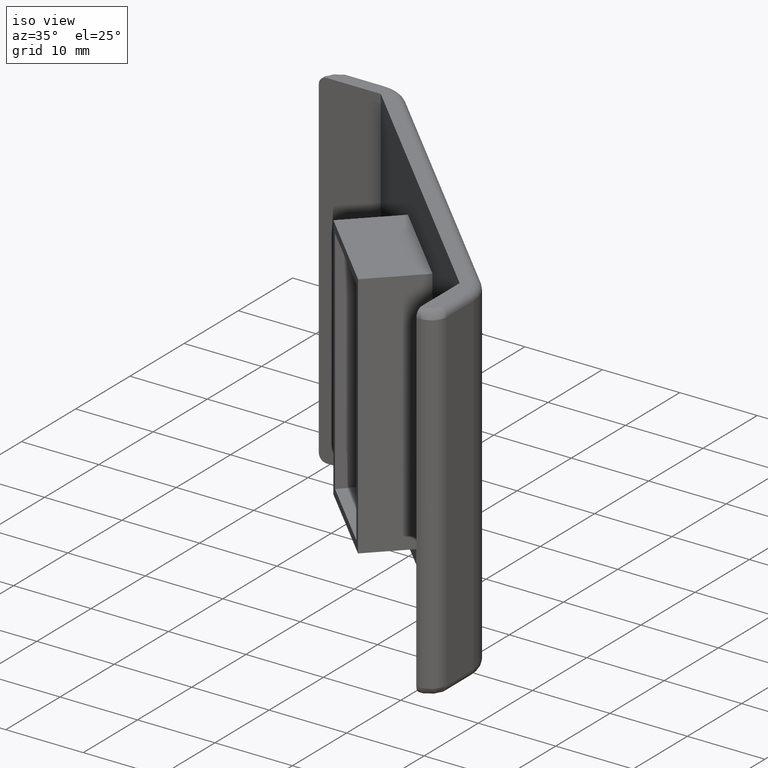
[diagram: clean part render]
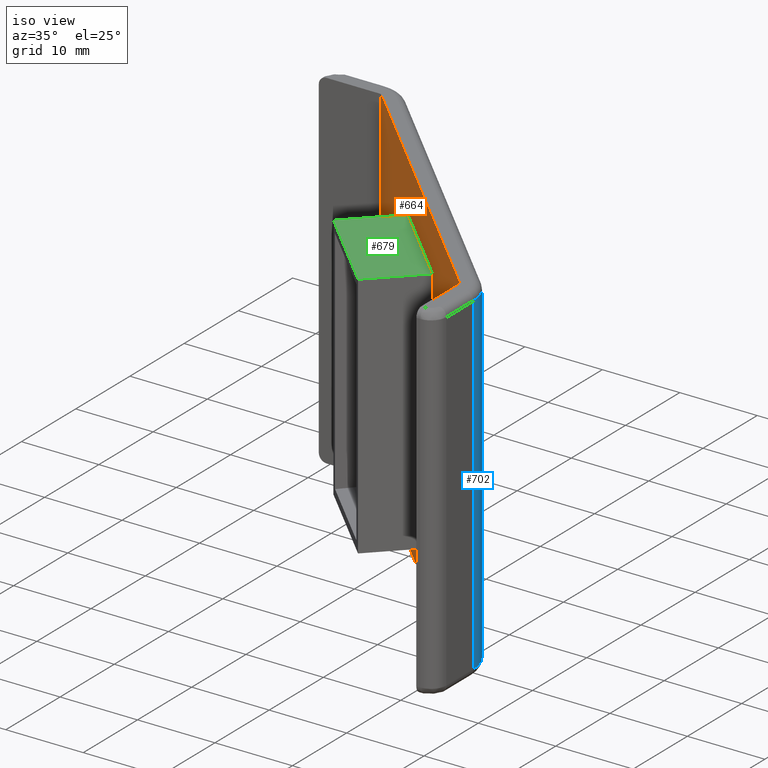
[diagram: same view with three faces highlighted in distinct colors, each labeled with its STEP entity id]
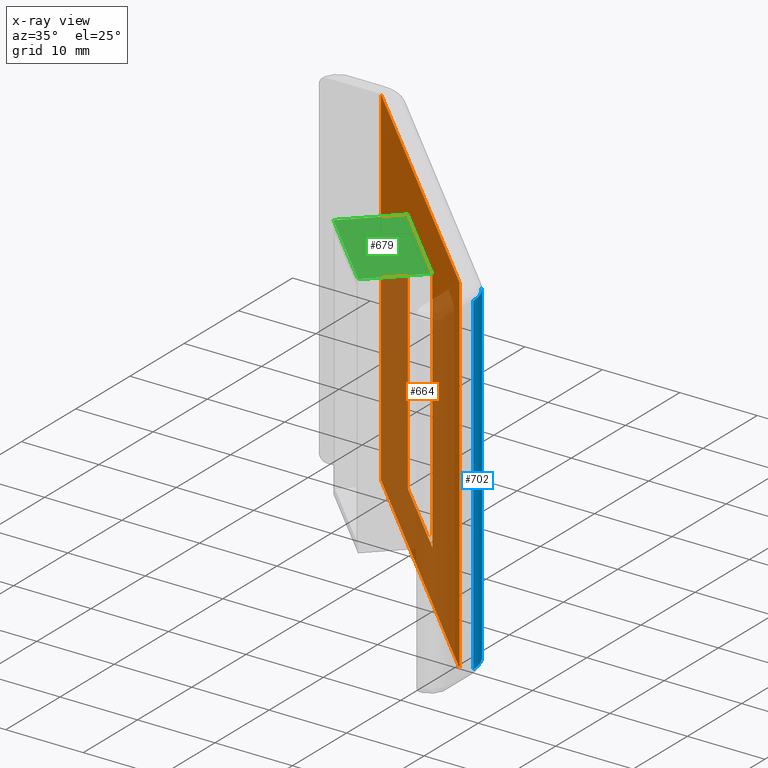
[diagram: x-ray of the same camera — body ghosted, the three highlighted faces saturated]
A machine part, iso view with three faces highlighted in distinct colors.
The next image is the same camera in x-ray (body ghosted, the three faces saturated) — at least one of them is partly hidden behind the body in this view.
Their STEP definitions:

[orange] entity #664 — the highlighted planar face has unit normal (0.7071, 0.7071, 0).
#40=FACE_BOUND('',#87,.T.);
#44=FACE_OUTER_BOUND('',#86,.T.);
#86=EDGE_LOOP('',(#470,#471,#472,#473));
#87=EDGE_LOOP('',(#474,#475,#476,#477));
#131=LINE('',#1006,#193);
#140=LINE('',#1035,#202);
#144=LINE('',#1044,#206);
#145=LINE('',#1045,#207);
#146=LINE('',#1048,#208);
#147=LINE('',#1050,#209);
#148=LINE('',#1052,#210);
#149=LINE('',#1053,#211);
#193=VECTOR('',#791,48.0832611206852);
#202=VECTOR('',#812,48.0832611206852);
#206=VECTOR('',#820,45.);
#207=VECTOR('',#821,45.);
#208=VECTOR('',#822,15.);
#209=VECTOR('',#823,32.);
#210=VECTOR('',#824,15.);
#211=VECTOR('',#825,32.);
#293=VERTEX_POINT('',#1003);
#294=VERTEX_POINT('',#1005);
#307=VERTEX_POINT('',#1032);
#308=VERTEX_POINT('',#1034);
#312=VERTEX_POINT('',#1046);
#313=VERTEX_POINT('',#1047);
#314=VERTEX_POINT('',#1049);
#315=VERTEX_POINT('',#1051);
#353=EDGE_CURVE('',#293,#294,#131,.T.);
#367=EDGE_CURVE('',#308,#307,#140,.T.);
#372=EDGE_CURVE('',#294,#307,#144,.T.);
#373=EDGE_CURVE('',#293,#308,#145,.T.);
#374=EDGE_CURVE('',#312,#313,#146,.T.);
#375=EDGE_CURVE('',#314,#312,#147,.T.);
#376=EDGE_CURVE('',#315,#314,#148,.T.);
#377=EDGE_CURVE('',#313,#315,#149,.T.);
#470=ORIENTED_EDGE('',*,*,#367,.T.);
#471=ORIENTED_EDGE('',*,*,#372,.F.);
#472=ORIENTED_EDGE('',*,*,#353,.F.);
#473=ORIENTED_EDGE('',*,*,#373,.T.);
#474=ORIENTED_EDGE('',*,*,#374,.F.);
#475=ORIENTED_EDGE('',*,*,#375,.F.);
#476=ORIENTED_EDGE('',*,*,#376,.F.);
#477=ORIENTED_EDGE('',*,*,#377,.F.);
#644=PLANE('',#716);
#664=ADVANCED_FACE('',(#44,#40),#644,.F.);
#716=AXIS2_PLACEMENT_3D('',#1043,#818,#819);
#791=DIRECTION('',(0.707106781186547,-0.707106781186547,0.));
#812=DIRECTION('',(0.707106781186547,-0.707106781186547,0.));
#818=DIRECTION('center_axis',(0.707106781186548,0.707106781186548,0.));
#819=DIRECTION('ref_axis',(-0.707106781186548,0.707106781186547,0.));
#820=DIRECTION('',(0.,0.,-1.));
#821=DIRECTION('',(0.,0.,-1.));
#822=DIRECTION('',(0.707106781186547,-0.707106781186548,0.));
#823=DIRECTION('',(0.,0.,-1.));
#824=DIRECTION('',(-0.707106781186547,0.707106781186548,0.));
#825=DIRECTION('',(0.,0.,1.));
#1003=CARTESIAN_POINT('',(8.,42.,22.5));
#1005=CARTESIAN_POINT('',(42.,8.,22.5));
#1006=CARTESIAN_POINT('',(8.,42.,22.5));
#1032=CARTESIAN_POINT('',(42.,8.,-22.5));
#1034=CARTESIAN_POINT('',(8.,42.,-22.5));
#1035=CARTESIAN_POINT('',(8.,42.,-22.5));
#1043=CARTESIAN_POINT('Origin',(8.,42.,22.5));
#1044=CARTESIAN_POINT('',(42.,8.,22.5));
#1045=CARTESIAN_POINT('',(8.,42.,22.5));
#1046=CARTESIAN_POINT('',(19.6966991411009,30.3033008588991,-16.));
#1047=CARTESIAN_POINT('',(30.3033008588991,19.6966991411009,-16.));
#1048=CARTESIAN_POINT('',(19.6966991411009,30.3033008588991,-16.));
#1049=CARTESIAN_POINT('',(19.6966991411009,30.3033008588991,16.));
#1050=CARTESIAN_POINT('',(19.6966991411009,30.3033008588991,14.5));
#1051=CARTESIAN_POINT('',(30.3033008588991,19.6966991411009,16.));
#1052=CARTESIAN_POINT('',(19.6966991411009,30.3033008588991,16.));
#1053=CARTESIAN_POINT('',(30.3033008588991,19.6966991411009,14.5));

[blue] entity #702 — the highlighted cylindrical surface (partial cylindrical patch) has radius 5 mm, axis along (0, 0, -1).
#39=CYLINDRICAL_SURFACE('',#777,5.);
#82=FACE_OUTER_BOUND('',#126,.T.);
#126=EDGE_LOOP('',(#634,#635,#636,#637));
#169=LINE('',#1104,#231);
#173=LINE('',#1113,#235);
#231=VECTOR('',#869,43.);
#235=VECTOR('',#875,43.);
#286=CIRCLE('',#776,5.);
#287=CIRCLE('',#778,5.);
#333=VERTEX_POINT('',#1101);
#334=VERTEX_POINT('',#1103);
#337=VERTEX_POINT('',#1110);
#338=VERTEX_POINT('',#1112);
#401=EDGE_CURVE('',#333,#334,#169,.T.);
#405=EDGE_CURVE('',#337,#338,#173,.T.);
#444=EDGE_CURVE('',#337,#334,#286,.T.);
#445=EDGE_CURVE('',#338,#333,#287,.T.);
#634=ORIENTED_EDGE('',*,*,#444,.T.);
#635=ORIENTED_EDGE('',*,*,#401,.F.);
#636=ORIENTED_EDGE('',*,*,#445,.F.);
#637=ORIENTED_EDGE('',*,*,#405,.F.);
#702=ADVANCED_FACE('',(#82),#39,.T.);
#776=AXIS2_PLACEMENT_3D('',#1221,#984,#985);
#777=AXIS2_PLACEMENT_3D('',#1222,#986,#987);
#778=AXIS2_PLACEMENT_3D('',#1223,#988,#989);
#869=DIRECTION('',(0.,0.,1.));
#875=DIRECTION('',(0.,0.,-1.));
#984=DIRECTION('center_axis',(0.,0.,-1.));
#985=DIRECTION('ref_axis',(1.,-1.73472347597681E-15,0.));
#986=DIRECTION('center_axis',(0.,0.,-1.));
#987=DIRECTION('ref_axis',(-1.,0.,0.));
#988=DIRECTION('center_axis',(0.,0.,-1.));
#989=DIRECTION('ref_axis',(1.,-1.73472347597681E-15,0.));
#1101=CARTESIAN_POINT('',(44.5,6.96446609406726,-21.5));
#1103=CARTESIAN_POINT('',(44.5,6.96446609406726,21.5));
#1104=CARTESIAN_POINT('',(44.5,6.96446609406726,22.5));
#1110=CARTESIAN_POINT('',(43.0355339059328,10.5,21.5));
#1112=CARTESIAN_POINT('',(43.0355339059328,10.5,-21.5));
#1113=CARTESIAN_POINT('',(43.0355339059328,10.5,22.5));
#1221=CARTESIAN_POINT('Origin',(39.5,6.96446609406726,21.5));
#1222=CARTESIAN_POINT('Origin',(39.5,6.96446609406726,22.5));
#1223=CARTESIAN_POINT('Origin',(39.5,6.96446609406726,-21.5));

[green] entity #679 — the highlighted planar face has unit normal (0, 0, -1).
#59=FACE_OUTER_BOUND('',#102,.T.);
#102=EDGE_LOOP('',(#538,#539,#540,#541));
#148=LINE('',#1052,#210);
#182=LINE('',#1137,#244);
#183=LINE('',#1140,#245);
#186=LINE('',#1145,#248);
#210=VECTOR('',#824,15.);
#244=VECTOR('',#900,8.);
#245=VECTOR('',#903,8.00000000000001);
#248=VECTOR('',#908,15.);
#314=VERTEX_POINT('',#1049);
#315=VERTEX_POINT('',#1051);
#345=VERTEX_POINT('',#1135);
#346=VERTEX_POINT('',#1139);
#376=EDGE_CURVE('',#315,#314,#148,.T.);
#418=EDGE_CURVE('',#345,#314,#182,.T.);
#419=EDGE_CURVE('',#346,#315,#183,.T.);
#422=EDGE_CURVE('',#346,#345,#186,.T.);
#538=ORIENTED_EDGE('',*,*,#376,.T.);
#539=ORIENTED_EDGE('',*,*,#418,.F.);
#540=ORIENTED_EDGE('',*,*,#422,.F.);
#541=ORIENTED_EDGE('',*,*,#419,.T.);
#657=PLANE('',#739);
#679=ADVANCED_FACE('',(#59),#657,.F.);
#739=AXIS2_PLACEMENT_3D('',#1144,#906,#907);
#824=DIRECTION('',(-0.707106781186547,0.707106781186548,0.));
#900=DIRECTION('',(0.707106781186548,0.707106781186547,0.));
#903=DIRECTION('',(0.707106781186548,0.707106781186547,0.));
#906=DIRECTION('center_axis',(0.,0.,-1.));
#907=DIRECTION('ref_axis',(-1.,0.,0.));
#908=DIRECTION('',(-0.707106781186547,0.707106781186548,0.));
#1049=CARTESIAN_POINT('',(19.6966991411009,30.3033008588991,16.));
#1051=CARTESIAN_POINT('',(30.3033008588991,19.6966991411009,16.));
#1052=CARTESIAN_POINT('',(19.6966991411009,30.3033008588991,16.));
#1135=CARTESIAN_POINT('',(14.0398448916085,24.6464466094067,16.));
#1137=CARTESIAN_POINT('',(14.0398448916085,24.6464466094067,16.));
#1139=CARTESIAN_POINT('',(24.6464466094067,14.0398448916085,16.));
#1140=CARTESIAN_POINT('',(24.6464466094067,14.0398448916085,16.));
#1144=CARTESIAN_POINT('Origin',(14.0398448916085,24.6464466094067,16.));
#1145=CARTESIAN_POINT('',(14.0398448916085,24.6464466094067,16.));